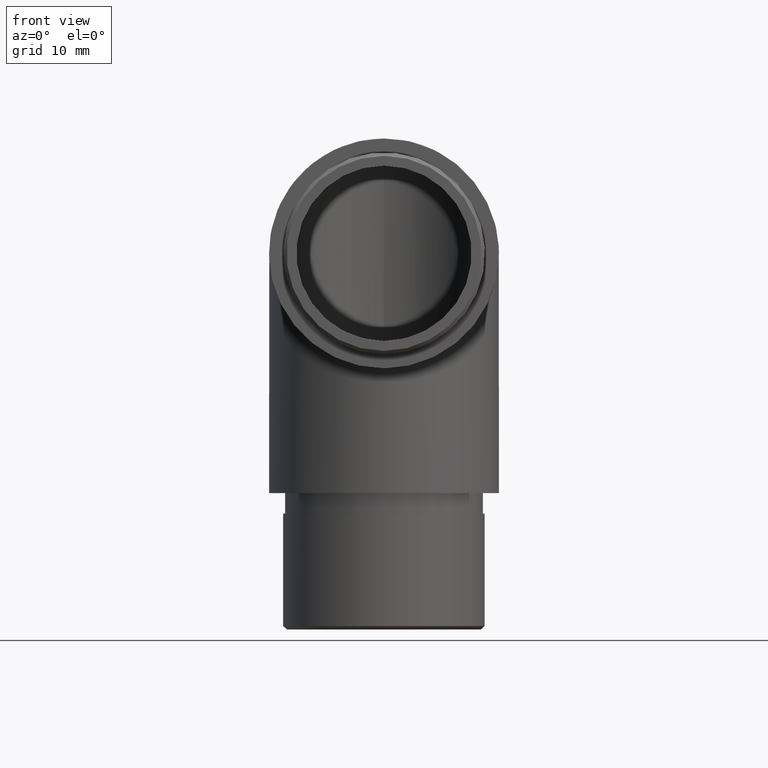
[diagram: clean part render]
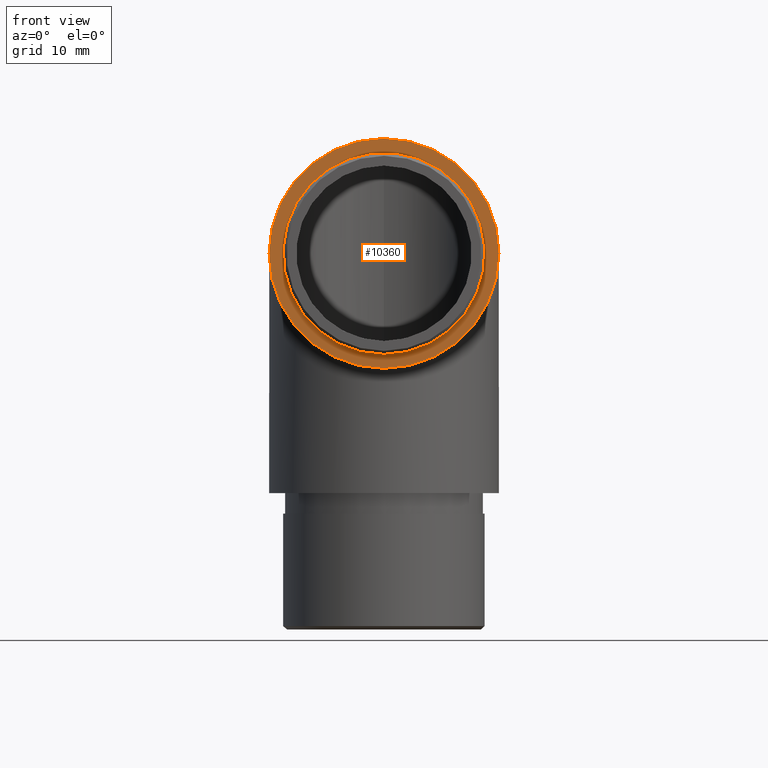
[diagram: same view with one face highlighted and labeled with its STEP entity id]
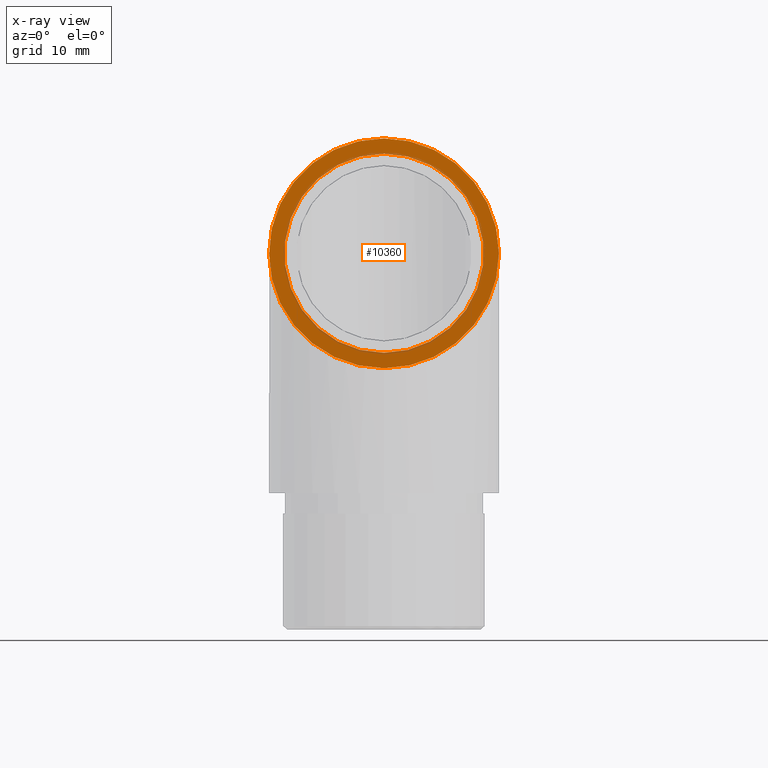
[diagram: x-ray of the same camera — body ghosted, the highlighted face saturated]
A machine part, front view. The second image highlights one B-rep face of the part: STEP entity #10360.
The next image is the same camera in x-ray: the body ghosted, the highlighted face saturated — about 8% of this face is hidden behind the body in this view.
In plain terms, the highlighted planar face has unit normal (0, 1, 0).
Its self-contained STEP definition (entity closure, byte-faithful):
#106 = VERTEX_POINT ( 'NONE', #5992 ) ;
#149 = CIRCLE ( 'NONE', #7950, 14.60000000000000100 ) ;
#402 = VERTEX_POINT ( 'NONE', #506 ) ;
#450 = DIRECTION ( 'NONE',  ( 0.0000000000000000000, 1.000000000000000000, 0.0000000000000000000 ) ) ;
#506 = CARTESIAN_POINT ( 'NONE',  ( 0.0000000000000000000, 0.0000000000000000000, 14.60000000000000100 ) ) ;
#611 = EDGE_CURVE ( 'NONE', #106, #106, #11683, .T. ) ;
#975 = EDGE_CURVE ( 'NONE', #402, #402, #149, .T. ) ;
#1445 = EDGE_LOOP ( 'NONE', ( #4829 ) ) ;
#1786 = AXIS2_PLACEMENT_3D ( 'NONE', #3441, #4417, #4340 ) ;
#2721 = CARTESIAN_POINT ( 'NONE',  ( 0.0000000000000000000, 0.0000000000000000000, 0.0000000000000000000 ) ) ;
#3441 = CARTESIAN_POINT ( 'NONE',  ( 0.0000000000000000000, 0.0000000000000000000, 0.0000000000000000000 ) ) ;
#3666 = DIRECTION ( 'NONE',  ( 0.0000000000000000000, 0.0000000000000000000, 1.000000000000000000 ) ) ;
#4340 = DIRECTION ( 'NONE',  ( 0.0000000000000000000, -0.0000000000000000000, 1.000000000000000000 ) ) ;
#4417 = DIRECTION ( 'NONE',  ( 0.0000000000000000000, 1.000000000000000000, 0.0000000000000000000 ) ) ;
#4829 = ORIENTED_EDGE ( 'NONE', *, *, #611, .F. ) ;
#5411 = FACE_BOUND ( 'NONE', #7794, .T. ) ;
#5439 = DIRECTION ( 'NONE',  ( -0.0000000000000000000, -1.000000000000000000, -0.0000000000000000000 ) ) ;
#5801 = ORIENTED_EDGE ( 'NONE', *, *, #975, .F. ) ;
#5934 = CARTESIAN_POINT ( 'NONE',  ( 0.0000000000000000000, 0.0000000000000000000, 0.0000000000000000000 ) ) ;
#5992 = CARTESIAN_POINT ( 'NONE',  ( 0.0000000000000000000, 0.0000000000000000000, 16.85000000000000100 ) ) ;
#6007 = DIRECTION ( 'NONE',  ( 0.0000000000000000000, 0.0000000000000000000, 1.000000000000000000 ) ) ;
#6547 = AXIS2_PLACEMENT_3D ( 'NONE', #5934, #450, #6007 ) ;
#7794 = EDGE_LOOP ( 'NONE', ( #5801 ) ) ;
#7877 = FACE_OUTER_BOUND ( 'NONE', #1445, .T. ) ;
#7950 = AXIS2_PLACEMENT_3D ( 'NONE', #2721, #5439, #3666 ) ;
#8040 = PLANE ( 'NONE',  #1786 ) ;
#10360 = ADVANCED_FACE ( 'NONE', ( #7877, #5411 ), #8040, .F. ) ;
#11683 = CIRCLE ( 'NONE', #6547, 16.85000000000000100 ) ;